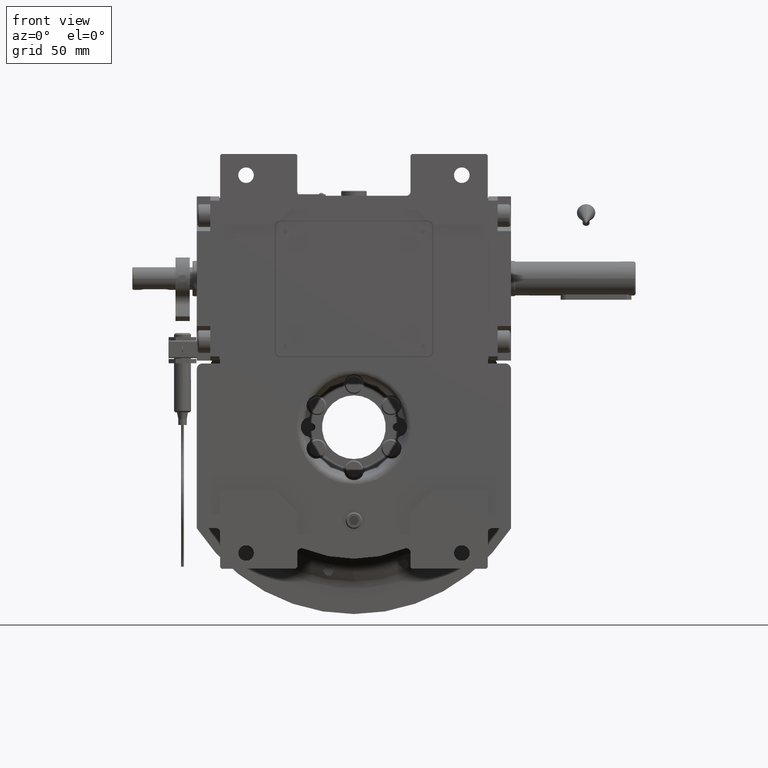
[diagram: clean part render]
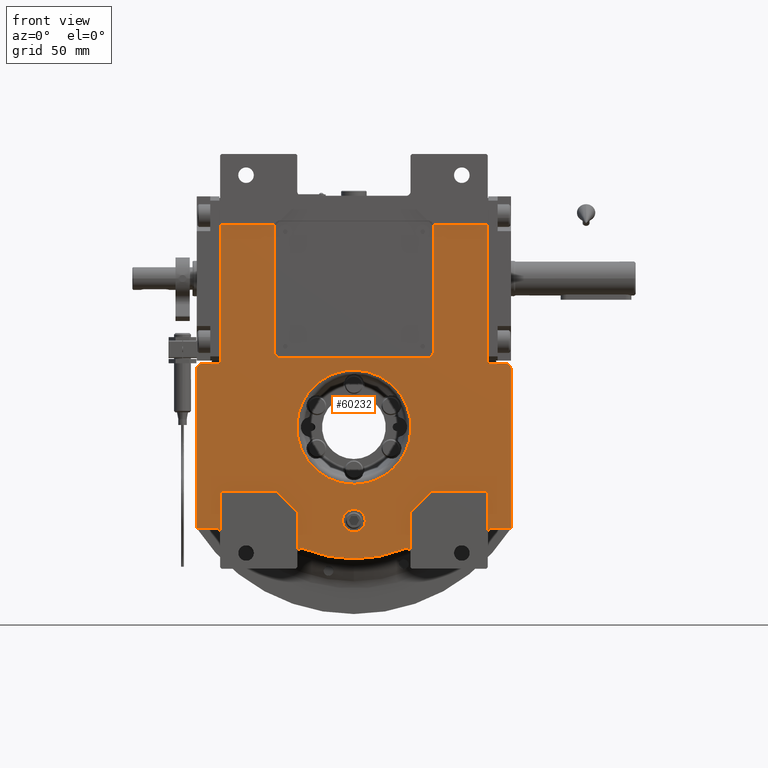
[diagram: same view with one face highlighted and labeled with its STEP entity id]
A machine part, front view. The second image highlights one B-rep face of the part: STEP entity #60232.
In plain terms, the highlighted planar face has unit normal (0, 1, 0).
Its self-contained STEP definition (entity closure, byte-faithful):
#45 = CIRCLE ( 'NONE', #58247, 3.000000000000003997 ) ;
#91 = CARTESIAN_POINT ( 'NONE',  ( 55.00000000000000000, -53.50000000000000000, -45.00000000000000000 ) ) ;
#445 = LINE ( 'NONE', #64282, #1620 ) ;
#529 = EDGE_CURVE ( 'NONE', #55608, #20338, #42030, .T. ) ;
#887 = CIRCLE ( 'NONE', #49399, 8.000000000000000000 ) ;
#1557 = EDGE_CURVE ( 'NONE', #16460, #49065, #445, .T. ) ;
#1620 = VECTOR ( 'NONE', #29345, 1000.000000000000000 ) ;
#2030 = LINE ( 'NONE', #59780, #36386 ) ;
#2519 = CARTESIAN_POINT ( 'NONE',  ( 94.50000000000000000, -53.50000000000000000, -74.43528539874399996 ) ) ;
#2643 = DIRECTION ( 'NONE',  ( -0.3854166666666672403, 0.000000000000000000, -0.9227426472508764022 ) ) ;
#3021 = VECTOR ( 'NONE', #7542, 1000.000000000000000 ) ;
#3111 = CARTESIAN_POINT ( 'NONE',  ( -107.0000000000000000, -53.50000000000000000, 45.00000000000000000 ) ) ;
#3233 = CIRCLE ( 'NONE', #27487, 4.000000000000572875 ) ;
#3744 = ORIENTED_EDGE ( 'NONE', *, *, #33997, .T. ) ;
#3776 = EDGE_CURVE ( 'NONE', #44270, #14143, #72508, .T. ) ;
#3843 = EDGE_CURVE ( 'NONE', #49065, #55065, #62484, .T. ) ;
#4768 = EDGE_CURVE ( 'NONE', #20485, #14464, #20256, .T. ) ;
#4853 = CARTESIAN_POINT ( 'NONE',  ( 1.264666971694413862E-10, -53.50000000000000000, -40.30959420574829721 ) ) ;
#5140 = DIRECTION ( 'NONE',  ( -1.000000000000000000, 0.000000000000000000, 0.000000000000000000 ) ) ;
#5152 = CARTESIAN_POINT ( 'NONE',  ( -80.61913312124997333, -53.49999999999999289, 40.30955543265923069 ) ) ;
#5232 = CARTESIAN_POINT ( 'NONE',  ( 37.00000000000000000, -53.50000000000000000, -88.58329413608420566 ) ) ;
#5275 = ORIENTED_EDGE ( 'NONE', *, *, #16240, .F. ) ;
#5757 = CARTESIAN_POINT ( 'NONE',  ( 107.0000000000000000, -53.50000000000000000, 41.00000000000000000 ) ) ;
#5888 = EDGE_CURVE ( 'NONE', #68815, #63899, #887, .T. ) ;
#6510 = ORIENTED_EDGE ( 'NONE', *, *, #13887, .F. ) ;
#6945 = VERTEX_POINT ( 'NONE', #2519 ) ;
#7542 = DIRECTION ( 'NONE',  ( 1.000000000000000000, 0.000000000000000000, 0.000000000000000000 ) ) ;
#7824 = CARTESIAN_POINT ( 'NONE',  ( 55.00000000000000000, -53.50000000000000000, -45.00000000000000000 ) ) ;
#7873 = CARTESIAN_POINT ( 'NONE',  ( 55.87298334620739837, -53.50000000000000000, 143.0000000000000000 ) ) ;
#7923 = AXIS2_PLACEMENT_3D ( 'NONE', #53899, #43250, #20439 ) ;
#8092 = VERTEX_POINT ( 'NONE', #35671 ) ;
#8146 = LINE ( 'NONE', #25618, #62199 ) ;
#8434 = DIRECTION ( 'NONE',  ( 0.000000000000000000, 0.000000000000000000, -1.000000000000000000 ) ) ;
#8812 = ORIENTED_EDGE ( 'NONE', *, *, #1557, .F. ) ;
#9026 = EDGE_CURVE ( 'NONE', #6945, #57812, #20159, .T. ) ;
#9051 = DIRECTION ( 'NONE',  ( 0.000000000000000000, -1.000000000000000000, 0.000000000000000000 ) ) ;
#9400 = VECTOR ( 'NONE', #9602, 1000.000000000000000 ) ;
#9407 = EDGE_CURVE ( 'NONE', #63899, #68815, #49783, .T. ) ;
#9412 = CARTESIAN_POINT ( 'NONE',  ( 97.50000000000000000, -53.50000000000000000, -74.43528539874399996 ) ) ;
#9466 = VECTOR ( 'NONE', #72457, 1000.000000000000000 ) ;
#9468 = EDGE_CURVE ( 'NONE', #36769, #32973, #47769, .T. ) ;
#9602 = DIRECTION ( 'NONE',  ( -1.000000000000000000, 0.000000000000000000, 0.000000000000000000 ) ) ;
#9871 = DIRECTION ( 'NONE',  ( 1.000000000000000000, 0.000000000000000000, 1.387778780781246883E-14 ) ) ;
#9962 = VECTOR ( 'NONE', #43792, 1000.000000000000000 ) ;
#9993 = CARTESIAN_POINT ( 'NONE',  ( 35.84375000000000000, -53.50000000000000000, -85.81506619433150718 ) ) ;
#10540 = CIRCLE ( 'NONE', #36010, 92.99999999999995737 ) ;
#11101 = EDGE_CURVE ( 'NONE', #32973, #36769, #68657, .T. ) ;
#12044 = ORIENTED_EDGE ( 'NONE', *, *, #73286, .F. ) ;
#12772 = VERTEX_POINT ( 'NONE', #71746 ) ;
#13608 = LINE ( 'NONE', #34644, #68005 ) ;
#13709 = EDGE_CURVE ( 'NONE', #12772, #24171, #56320, .T. ) ;
#13887 = EDGE_CURVE ( 'NONE', #74957, #38198, #13608, .T. ) ;
#14143 = VERTEX_POINT ( 'NONE', #68298 ) ;
#14464 = VERTEX_POINT ( 'NONE', #36705 ) ;
#14693 = EDGE_CURVE ( 'NONE', #55608, #23686, #67063, .T. ) ;
#14747 = DIRECTION ( 'NONE',  ( 1.000000000000000000, 0.000000000000000000, 0.000000000000000000 ) ) ;
#14804 = CARTESIAN_POINT ( 'NONE',  ( 51.99999999999940314, -53.50000000000000000, 142.0000000000000000 ) ) ;
#14930 = EDGE_LOOP ( 'NONE', ( #18890, #75044 ) ) ;
#15048 = DIRECTION ( 'NONE',  ( 0.000000000000000000, 0.000000000000000000, -1.000000000000000000 ) ) ;
#15133 = DIRECTION ( 'NONE',  ( 1.000000000000000000, 0.000000000000000000, 0.000000000000000000 ) ) ;
#15244 = VERTEX_POINT ( 'NONE', #91 ) ;
#15281 = EDGE_CURVE ( 'NONE', #57812, #15244, #35049, .T. ) ;
#15612 = FACE_BOUND ( 'NONE', #14930, .T. ) ;
#15687 = CIRCLE ( 'NONE', #58178, 4.000000000000003553 ) ;
#15776 = DIRECTION ( 'NONE',  ( 1.000000000000000000, 0.000000000000000000, 0.000000000000000000 ) ) ;
#15876 = CARTESIAN_POINT ( 'NONE',  ( 80.61913312099713380, -53.49999999999999289, 40.30952624498025472 ) ) ;
#16240 = EDGE_CURVE ( 'NONE', #75016, #18408, #2030, .T. ) ;
#16460 = VERTEX_POINT ( 'NONE', #20616 ) ;
#16765 = DIRECTION ( 'NONE',  ( 1.000000000000000000, 0.000000000000000000, 5.204170427930416550E-15 ) ) ;
#18184 = VERTEX_POINT ( 'NONE', #41037 ) ;
#18262 = CARTESIAN_POINT ( 'NONE',  ( -40.00000000000000000, -53.50000000000000000, -60.00000000000000000 ) ) ;
#18408 = VERTEX_POINT ( 'NONE', #68716 ) ;
#18890 = ORIENTED_EDGE ( 'NONE', *, *, #11101, .T. ) ;
#20124 = CARTESIAN_POINT ( 'NONE',  ( 94.50000000000000000, -53.50000000000000000, 45.00000000000000000 ) ) ;
#20159 = LINE ( 'NONE', #49414, #71660 ) ;
#20256 = LINE ( 'NONE', #45595, #62646 ) ;
#20338 = VERTEX_POINT ( 'NONE', #18262 ) ;
#20439 = DIRECTION ( 'NONE',  ( -1.000000000000000000, 0.000000000000000000, 1.734723475976808672E-15 ) ) ;
#20485 = VERTEX_POINT ( 'NONE', #20124 ) ;
#20614 = CARTESIAN_POINT ( 'NONE',  ( 94.50000000000000000, -53.50000000000000000, -45.00000000000000000 ) ) ;
#20615 = CARTESIAN_POINT ( 'NONE',  ( 97.50000000000000000, -53.50000000000000000, -71.43528539874399996 ) ) ;
#20616 = CARTESIAN_POINT ( 'NONE',  ( -56.00000000000000000, -53.50000000000000000, 142.0000000000000000 ) ) ;
#20821 = CARTESIAN_POINT ( 'NONE',  ( -51.99999999999900524, -53.50000000000000000, 142.0000000000000000 ) ) ;
#21034 = VERTEX_POINT ( 'NONE', #57541 ) ;
#21747 = CARTESIAN_POINT ( 'NONE',  ( -55.00000000000000000, -53.50000000000000000, -45.00000000000000000 ) ) ;
#22479 = ORIENTED_EDGE ( 'NONE', *, *, #68395, .F. ) ;
#22570 = ORIENTED_EDGE ( 'NONE', *, *, #9407, .F. ) ;
#22643 = CARTESIAN_POINT ( 'NONE',  ( 111.0000000000000000, -53.50000000000000000, -71.43528539874399996 ) ) ;
#23343 = DIRECTION ( 'NONE',  ( 0.000000000000000000, 1.000000000000000000, 0.000000000000000000 ) ) ;
#23383 = ORIENTED_EDGE ( 'NONE', *, *, #28347, .F. ) ;
#23686 = VERTEX_POINT ( 'NONE', #65303 ) ;
#23945 = VERTEX_POINT ( 'NONE', #44999 ) ;
#24171 = VERTEX_POINT ( 'NONE', #29552 ) ;
#24194 = CARTESIAN_POINT ( 'NONE',  ( 1.264666971694413862E-10, -53.50000000000000000, -40.30959420574829721 ) ) ;
#24758 = CIRCLE ( 'NONE', #61141, 3.000000000000002665 ) ;
#25618 = CARTESIAN_POINT ( 'NONE',  ( -94.50000000000000000, -53.50000000000000000, 45.00000000000000000 ) ) ;
#25737 = DIRECTION ( 'NONE',  ( -1.000000000000000000, 0.000000000000000000, 0.000000000000000000 ) ) ;
#26424 = VECTOR ( 'NONE', #15048, 1000.000000000000000 ) ;
#26605 = ORIENTED_EDGE ( 'NONE', *, *, #29980, .F. ) ;
#26623 = FACE_BOUND ( 'NONE', #61339, .T. ) ;
#26715 = AXIS2_PLACEMENT_3D ( 'NONE', #43630, #9051, #14747 ) ;
#26789 = LINE ( 'NONE', #73151, #66410 ) ;
#27174 = CARTESIAN_POINT ( 'NONE',  ( -80.61913312099703433, -53.49999999999999289, -40.30952624498007708 ) ) ;
#27380 = DIRECTION ( 'NONE',  ( 0.000000000000000000, -1.000000000000000000, 0.000000000000000000 ) ) ;
#27487 = AXIS2_PLACEMENT_3D ( 'NONE', #14804, #50123, #9871 ) ;
#28031 = CARTESIAN_POINT ( 'NONE',  ( 80.61913312125007280, -53.49999999999999289, -40.30955543265933727 ) ) ;
#28045 = AXIS2_PLACEMENT_3D ( 'NONE', #67668, #27380, #56261 ) ;
#28347 = EDGE_CURVE ( 'NONE', #38198, #75016, #3233, .T. ) ;
#28388 = EDGE_CURVE ( 'NONE', #23686, #67118, #10540, .T. ) ;
#28957 = AXIS2_PLACEMENT_3D ( 'NONE', #20821, #38310, #55414 ) ;
#29345 = DIRECTION ( 'NONE',  ( 0.000000000000000000, 0.000000000000000000, -1.000000000000000000 ) ) ;
#29552 = CARTESIAN_POINT ( 'NONE',  ( -94.50000000000000000, -53.50000000000000000, -45.00000000000000000 ) ) ;
#29809 = DIRECTION ( 'NONE',  ( -1.000000000000000000, 0.000000000000000000, 4.625929269271481378E-15 ) ) ;
#29898 = DIRECTION ( 'NONE',  ( -0.7071067811865474617, 0.000000000000000000, -0.7071067811865474617 ) ) ;
#29980 = EDGE_CURVE ( 'NONE', #15244, #18184, #41294, .T. ) ;
#30514 = CARTESIAN_POINT ( 'NONE',  ( -94.50000000000000000, -53.50000000000000000, 143.0000000000000000 ) ) ;
#30862 = CARTESIAN_POINT ( 'NONE',  ( -8.000000000000000000, -53.50000000000000000, -66.00000000000000000 ) ) ;
#31337 = DIRECTION ( 'NONE',  ( 0.000000000000000000, 0.000000000000000000, 1.000000000000000000 ) ) ;
#31424 = LINE ( 'NONE', #54603, #9466 ) ;
#31442 = EDGE_CURVE ( 'NONE', #14143, #65014, #44840, .T. ) ;
#31633 = CARTESIAN_POINT ( 'NONE',  ( -97.50000000000000000, -53.50000000000000000, -74.43528539874409944 ) ) ;
#32024 = LINE ( 'NONE', #20615, #9962 ) ;
#32302 = EDGE_LOOP ( 'NONE', ( #72398, #38599, #8812, #59454, #49355, #22479, #12044, #71018, #71701, #32311, #68385, #34307, #34840, #59151, #61951, #46664, #64807, #3744, #66098, #26605, #74264, #43517, #47099, #40910, #44699, #44653, #39726, #50319, #5275, #23383, #6510, #38945 ) ) ;
#32311 = ORIENTED_EDGE ( 'NONE', *, *, #3776, .T. ) ;
#32537 = CARTESIAN_POINT ( 'NONE',  ( -1.264761546777279996E-10, -53.50000000000000000, 40.30959420574835406 ) ) ;
#32816 = VERTEX_POINT ( 'NONE', #45501 ) ;
#32973 = VERTEX_POINT ( 'NONE', #24194 ) ;
#33032 = DIRECTION ( 'NONE',  ( 0.000000000000000000, -1.000000000000000000, 0.000000000000000000 ) ) ;
#33997 = EDGE_CURVE ( 'NONE', #67118, #21034, #45, .T. ) ;
#34114 = CIRCLE ( 'NONE', #28045, 3.999999999999996447 ) ;
#34307 = ORIENTED_EDGE ( 'NONE', *, *, #48985, .F. ) ;
#34436 = CARTESIAN_POINT ( 'NONE',  ( -94.50000000000000000, -53.50000000000000000, -74.43528539874409944 ) ) ;
#34644 = CARTESIAN_POINT ( 'NONE',  ( 56.00000000000000000, -53.50000000000000000, 53.00000000000000000 ) ) ;
#34840 = ORIENTED_EDGE ( 'NONE', *, *, #13709, .F. ) ;
#34943 = CARTESIAN_POINT ( 'NONE',  ( -1.264761546777279996E-10, -53.50000000000000000, 40.30959420574835406 ) ) ;
#35049 = LINE ( 'NONE', #69627, #67122 ) ;
#35559 = DIRECTION ( 'NONE',  ( 0.000000000000000000, 0.000000000000000000, 1.000000000000000000 ) ) ;
#35671 = CARTESIAN_POINT ( 'NONE',  ( -111.0000000000000000, -53.50000000000000000, 41.00000000000000000 ) ) ;
#36010 = AXIS2_PLACEMENT_3D ( 'NONE', #49002, #33032, #2643 ) ;
#36079 = EDGE_CURVE ( 'NONE', #32816, #62188, #32024, .T. ) ;
#36386 = VECTOR ( 'NONE', #65108, 1000.000000000000000 ) ;
#36705 = CARTESIAN_POINT ( 'NONE',  ( 107.0000000000000000, -53.50000000000000000, 45.00000000000000000 ) ) ;
#36769 = VERTEX_POINT ( 'NONE', #34943 ) ;
#36786 = DIRECTION ( 'NONE',  ( 0.000000000000000000, 0.000000000000000000, 1.000000000000000000 ) ) ;
#37189 = CARTESIAN_POINT ( 'NONE',  ( 56.00000000000000000, -53.50000000000000000, 142.0000000000000000 ) ) ;
#37915 = EDGE_CURVE ( 'NONE', #68769, #74957, #57081, .T. ) ;
#38198 = VERTEX_POINT ( 'NONE', #37189 ) ;
#38310 = DIRECTION ( 'NONE',  ( 0.000000000000000000, -1.000000000000000000, 0.000000000000000000 ) ) ;
#38435 = LINE ( 'NONE', #43381, #51787 ) ;
#38599 = ORIENTED_EDGE ( 'NONE', *, *, #3843, .F. ) ;
#38945 = ORIENTED_EDGE ( 'NONE', *, *, #37915, .F. ) ;
#39070 = EDGE_CURVE ( 'NONE', #51593, #8092, #34114, .T. ) ;
#39163 = VECTOR ( 'NONE', #74709, 1000.000000000000114 ) ;
#39709 = CARTESIAN_POINT ( 'NONE',  ( -111.0000000000000000, -53.50000000000000000, -71.43528539874409944 ) ) ;
#39726 = ORIENTED_EDGE ( 'NONE', *, *, #4768, .F. ) ;
#40040 = CARTESIAN_POINT ( 'NONE',  ( 52.00000000000000000, -53.50000000000000000, 49.00000000000000000 ) ) ;
#40910 = ORIENTED_EDGE ( 'NONE', *, *, #36079, .T. ) ;
#41037 = CARTESIAN_POINT ( 'NONE',  ( 40.00000000000000000, -53.50000000000000000, -60.00000000000000000 ) ) ;
#41294 = LINE ( 'NONE', #7824, #53143 ) ;
#41454 = EDGE_CURVE ( 'NONE', #62679, #23945, #65813, .T. ) ;
#41505 = CARTESIAN_POINT ( 'NONE',  ( 111.0000000000000000, -53.50000000000000000, -71.43528539874399996 ) ) ;
#41564 = CARTESIAN_POINT ( 'NONE',  ( -37.00000000000000000, -53.50000000000000000, -88.58329413608420566 ) ) ;
#41711 = VECTOR ( 'NONE', #64824, 1000.000000000000000 ) ;
#41908 = DIRECTION ( 'NONE',  ( 1.000000000000000000, 0.000000000000000000, 0.000000000000000000 ) ) ;
#42030 = LINE ( 'NONE', #58394, #41711 ) ;
#42773 = AXIS2_PLACEMENT_3D ( 'NONE', #41564, #23343, #29809 ) ;
#43250 = DIRECTION ( 'NONE',  ( 0.000000000000000000, -1.000000000000000000, 0.000000000000000000 ) ) ;
#43381 = CARTESIAN_POINT ( 'NONE',  ( -94.50000000000000000, -53.50000000000000000, -45.00000000000000000 ) ) ;
#43444 = DIRECTION ( 'NONE',  ( 1.000000000000000000, 0.000000000000000000, 0.000000000000000000 ) ) ;
#43517 = ORIENTED_EDGE ( 'NONE', *, *, #9026, .F. ) ;
#43599 = DIRECTION ( 'NONE',  ( 0.000000000000000000, 1.000000000000000000, 0.000000000000000000 ) ) ;
#43630 = CARTESIAN_POINT ( 'NONE',  ( 8.881784197001250351E-16, -53.50000000000000000, -66.00000000000000000 ) ) ;
#43792 = DIRECTION ( 'NONE',  ( 1.000000000000000000, 0.000000000000000000, 0.000000000000000000 ) ) ;
#43930 = LINE ( 'NONE', #67113, #26424 ) ;
#44103 = DIRECTION ( 'NONE',  ( -0.000000000000000000, 1.000000000000000000, 0.000000000000000000 ) ) ;
#44270 = VERTEX_POINT ( 'NONE', #39709 ) ;
#44653 = ORIENTED_EDGE ( 'NONE', *, *, #62702, .T. ) ;
#44699 = ORIENTED_EDGE ( 'NONE', *, *, #67430, .T. ) ;
#44840 = CIRCLE ( 'NONE', #73976, 3.000000000000002665 ) ;
#44999 = CARTESIAN_POINT ( 'NONE',  ( -55.87298334620739837, -53.50000000000000000, 143.0000000000000000 ) ) ;
#45085 = CARTESIAN_POINT ( 'NONE',  ( 8.000000000000000000, -53.50000000000000000, -66.00000000000000000 ) ) ;
#45141 = CARTESIAN_POINT ( 'NONE',  ( -107.0000000000000000, -53.50000000000000000, 45.00000000000000000 ) ) ;
#45385 = DIRECTION ( 'NONE',  ( 0.000000000000000000, 0.000000000000000000, -1.000000000000000000 ) ) ;
#45501 = CARTESIAN_POINT ( 'NONE',  ( 97.50000000000000000, -53.50000000000000000, -71.43528539874399996 ) ) ;
#45595 = CARTESIAN_POINT ( 'NONE',  ( 94.50000000000000000, -53.50000000000000000, 45.00000000000000000 ) ) ;
#46117 = AXIS2_PLACEMENT_3D ( 'NONE', #53919, #53545, #52419 ) ;
#46148 = LINE ( 'NONE', #63246, #57699 ) ;
#46218 = VERTEX_POINT ( 'NONE', #52150 ) ;
#46664 = ORIENTED_EDGE ( 'NONE', *, *, #14693, .T. ) ;
#47099 = ORIENTED_EDGE ( 'NONE', *, *, #54267, .T. ) ;
#47150 = CARTESIAN_POINT ( 'NONE',  ( -94.50000000000000000, -53.50000000000000000, 143.0000000000000000 ) ) ;
#47769 =( BOUNDED_CURVE ( )  B_SPLINE_CURVE ( 3, ( #55788, #15876, #28031, #4853 ),
 .UNSPECIFIED., .F., .F. ) 
 B_SPLINE_CURVE_WITH_KNOTS ( ( 4, 4 ),
 ( 4.574175343352308687, 7.715766673011676957 ),
 .UNSPECIFIED. ) 
 CURVE ( )  GEOMETRIC_REPRESENTATION_ITEM ( )  RATIONAL_B_SPLINE_CURVE ( ( 1.000000000000000000, 0.3333337746434750226, 0.3333337746434750226, 1.000000000000000000 ) ) 
 REPRESENTATION_ITEM ( '' )  );
#48934 = CARTESIAN_POINT ( 'NONE',  ( -111.0000000000000000, -53.50000000000000000, -71.43528539874409944 ) ) ;
#48985 = EDGE_CURVE ( 'NONE', #24171, #65014, #38435, .T. ) ;
#49002 = CARTESIAN_POINT ( 'NONE',  ( 1.421085471520200056E-14, -53.50000000000000000, -4.263256414560599853E-14 ) ) ;
#49065 = VERTEX_POINT ( 'NONE', #51709 ) ;
#49355 = ORIENTED_EDGE ( 'NONE', *, *, #41454, .F. ) ;
#49399 = AXIS2_PLACEMENT_3D ( 'NONE', #69364, #58332, #5140 ) ;
#49414 = CARTESIAN_POINT ( 'NONE',  ( 94.50000000000000000, -53.50000000000000000, -74.43528539874399996 ) ) ;
#49783 = CIRCLE ( 'NONE', #26715, 8.000000000000000000 ) ;
#49816 = PLANE ( 'NONE',  #56935 ) ;
#50123 = DIRECTION ( 'NONE',  ( 0.000000000000000000, -1.000000000000000000, 0.000000000000000000 ) ) ;
#50180 = DIRECTION ( 'NONE',  ( 1.000000000000000000, 0.000000000000000000, 0.000000000000000000 ) ) ;
#50319 = ORIENTED_EDGE ( 'NONE', *, *, #61092, .F. ) ;
#50853 = LINE ( 'NONE', #45141, #61486 ) ;
#51259 = EDGE_CURVE ( 'NONE', #20338, #12772, #73208, .T. ) ;
#51590 = DIRECTION ( 'NONE',  ( 0.000000000000000000, 1.000000000000000000, 0.000000000000000000 ) ) ;
#51593 = VERTEX_POINT ( 'NONE', #3111 ) ;
#51709 = CARTESIAN_POINT ( 'NONE',  ( -56.00000000000000000, -53.50000000000000000, 53.00000000000000000 ) ) ;
#51787 = VECTOR ( 'NONE', #8434, 1000.000000000000000 ) ;
#52150 = CARTESIAN_POINT ( 'NONE',  ( -94.50000000000000000, -53.50000000000000000, 45.00000000000000000 ) ) ;
#52306 = CARTESIAN_POINT ( 'NONE',  ( 111.0000000000000000, -53.50000000000000000, 41.00000000000000000 ) ) ;
#52419 = DIRECTION ( 'NONE',  ( 0.000000000000000000, 0.000000000000000000, -1.000000000000000000 ) ) ;
#53143 = VECTOR ( 'NONE', #29898, 1000.000000000000114 ) ;
#53545 = DIRECTION ( 'NONE',  ( 0.000000000000000000, -1.000000000000000000, 0.000000000000000000 ) ) ;
#53899 = CARTESIAN_POINT ( 'NONE',  ( -52.00000000000000000, -53.50000000000000000, 53.00000000000000000 ) ) ;
#53919 = CARTESIAN_POINT ( 'NONE',  ( 52.00000000000000000, -53.50000000000000000, 53.00000000000000000 ) ) ;
#54267 = EDGE_CURVE ( 'NONE', #6945, #32816, #24758, .T. ) ;
#54603 = CARTESIAN_POINT ( 'NONE',  ( 40.00000000000000000, -53.50000000000000000, -60.00000000000000000 ) ) ;
#54811 = DIRECTION ( 'NONE',  ( 0.000000000000000000, 1.000000000000000000, 0.000000000000000000 ) ) ;
#55065 = VERTEX_POINT ( 'NONE', #74080 ) ;
#55143 = CARTESIAN_POINT ( 'NONE',  ( 0.000000000000000000, -53.50000000000000000, 0.000000000000000000 ) ) ;
#55414 = DIRECTION ( 'NONE',  ( -0.9682458365518610277, 0.000000000000000000, 0.2499999999999737432 ) ) ;
#55608 = VERTEX_POINT ( 'NONE', #69803 ) ;
#55788 = CARTESIAN_POINT ( 'NONE',  ( -1.264761546777279996E-10, -53.50000000000000000, 40.30959420574835406 ) ) ;
#55960 = EDGE_CURVE ( 'NONE', #8092, #44270, #46148, .T. ) ;
#56261 = DIRECTION ( 'NONE',  ( -3.469446951953617344E-15, 0.000000000000000000, 1.000000000000000000 ) ) ;
#56320 = LINE ( 'NONE', #21747, #9400 ) ;
#56935 = AXIS2_PLACEMENT_3D ( 'NONE', #55143, #44103, #50180 ) ;
#56993 = VERTEX_POINT ( 'NONE', #52306 ) ;
#57081 = CIRCLE ( 'NONE', #46117, 3.999999999999996447 ) ;
#57211 = CARTESIAN_POINT ( 'NONE',  ( 1.264666971694413862E-10, -53.50000000000000000, -40.30959420574829721 ) ) ;
#57541 = CARTESIAN_POINT ( 'NONE',  ( 40.00000000000000000, -53.50000000000000000, -88.58329413608420566 ) ) ;
#57684 = ORIENTED_EDGE ( 'NONE', *, *, #5888, .F. ) ;
#57699 = VECTOR ( 'NONE', #45385, 1000.000000000000000 ) ;
#57812 = VERTEX_POINT ( 'NONE', #20614 ) ;
#58178 = AXIS2_PLACEMENT_3D ( 'NONE', #5757, #70344, #16765 ) ;
#58247 = AXIS2_PLACEMENT_3D ( 'NONE', #5232, #51590, #74767 ) ;
#58332 = DIRECTION ( 'NONE',  ( 0.000000000000000000, -1.000000000000000000, 0.000000000000000000 ) ) ;
#58394 = CARTESIAN_POINT ( 'NONE',  ( -40.00000000000000000, -53.50000000000000000, -88.58329413608420566 ) ) ;
#58473 = VECTOR ( 'NONE', #41908, 1000.000000000000000 ) ;
#58509 = EDGE_CURVE ( 'NONE', #55065, #68769, #26789, .T. ) ;
#59151 = ORIENTED_EDGE ( 'NONE', *, *, #51259, .F. ) ;
#59454 = ORIENTED_EDGE ( 'NONE', *, *, #59823, .F. ) ;
#59780 = CARTESIAN_POINT ( 'NONE',  ( 55.87298334620739837, -53.50000000000000000, 143.0000000000000000 ) ) ;
#59823 = EDGE_CURVE ( 'NONE', #23945, #16460, #75092, .T. ) ;
#60232 = ADVANCED_FACE ( 'NONE', ( #15612, #26623, #72998 ), #49816, .F. ) ;
#60301 = CARTESIAN_POINT ( 'NONE',  ( 56.00000000000000000, -53.50000000000000000, 53.00000000000000000 ) ) ;
#61079 = EDGE_CURVE ( 'NONE', #18184, #21034, #31424, .T. ) ;
#61092 = EDGE_CURVE ( 'NONE', #18408, #20485, #43930, .T. ) ;
#61141 = AXIS2_PLACEMENT_3D ( 'NONE', #9412, #43599, #25737 ) ;
#61189 = DIRECTION ( 'NONE',  ( 0.000000000000000000, 0.000000000000000000, 1.000000000000000000 ) ) ;
#61339 = EDGE_LOOP ( 'NONE', ( #22570, #57684 ) ) ;
#61486 = VECTOR ( 'NONE', #15133, 1000.000000000000000 ) ;
#61951 = ORIENTED_EDGE ( 'NONE', *, *, #529, .F. ) ;
#62180 = CARTESIAN_POINT ( 'NONE',  ( -40.00000000000000000, -53.50000000000000000, -60.00000000000000000 ) ) ;
#62188 = VERTEX_POINT ( 'NONE', #22643 ) ;
#62199 = VECTOR ( 'NONE', #31337, 1000.000000000000000 ) ;
#62484 = CIRCLE ( 'NONE', #7923, 3.999999999999996447 ) ;
#62646 = VECTOR ( 'NONE', #43444, 1000.000000000000000 ) ;
#62679 = VERTEX_POINT ( 'NONE', #47150 ) ;
#62702 = EDGE_CURVE ( 'NONE', #56993, #14464, #15687, .T. ) ;
#63246 = CARTESIAN_POINT ( 'NONE',  ( -111.0000000000000000, -53.50000000000000000, 41.00000000000000000 ) ) ;
#63899 = VERTEX_POINT ( 'NONE', #45085 ) ;
#64282 = CARTESIAN_POINT ( 'NONE',  ( -56.00000000000000000, -53.50000000000000000, 142.0000000000000000 ) ) ;
#64659 = DIRECTION ( 'NONE',  ( -1.000000000000000000, 0.000000000000000000, 0.000000000000000000 ) ) ;
#64807 = ORIENTED_EDGE ( 'NONE', *, *, #28388, .T. ) ;
#64824 = DIRECTION ( 'NONE',  ( 0.000000000000000000, 0.000000000000000000, 1.000000000000000000 ) ) ;
#65014 = VERTEX_POINT ( 'NONE', #34436 ) ;
#65108 = DIRECTION ( 'NONE',  ( 1.000000000000000000, 0.000000000000000000, 0.000000000000000000 ) ) ;
#65303 = CARTESIAN_POINT ( 'NONE',  ( -35.84375000000000000, -53.50000000000000000, -85.81506619433150718 ) ) ;
#65813 = LINE ( 'NONE', #30514, #58473 ) ;
#66098 = ORIENTED_EDGE ( 'NONE', *, *, #61079, .F. ) ;
#66410 = VECTOR ( 'NONE', #15776, 1000.000000000000000 ) ;
#67063 = CIRCLE ( 'NONE', #42773, 3.000000000000002665 ) ;
#67113 = CARTESIAN_POINT ( 'NONE',  ( 94.50000000000000000, -53.50000000000000000, 143.0000000000000000 ) ) ;
#67118 = VERTEX_POINT ( 'NONE', #9993 ) ;
#67122 = VECTOR ( 'NONE', #64659, 1000.000000000000000 ) ;
#67430 = EDGE_CURVE ( 'NONE', #62188, #56993, #71150, .T. ) ;
#67668 = CARTESIAN_POINT ( 'NONE',  ( -107.0000000000000000, -53.50000000000000000, 41.00000000000000000 ) ) ;
#68005 = VECTOR ( 'NONE', #36786, 1000.000000000000000 ) ;
#68298 = CARTESIAN_POINT ( 'NONE',  ( -97.50000000000000000, -53.50000000000000000, -71.43528539874409944 ) ) ;
#68385 = ORIENTED_EDGE ( 'NONE', *, *, #31442, .T. ) ;
#68395 = EDGE_CURVE ( 'NONE', #46218, #62679, #8146, .T. ) ;
#68657 =( BOUNDED_CURVE ( )  B_SPLINE_CURVE ( 3, ( #57211, #27174, #5152, #32537 ),
 .UNSPECIFIED., .F., .F. ) 
 B_SPLINE_CURVE_WITH_KNOTS ( ( 4, 4 ),
 ( 1.432582689913126872, 4.574174019572492256 ),
 .UNSPECIFIED. ) 
 CURVE ( )  GEOMETRIC_REPRESENTATION_ITEM ( )  RATIONAL_B_SPLINE_CURVE ( ( 1.000000000000000000, 0.3333337746434759108, 0.3333337746434759108, 1.000000000000000000 ) ) 
 REPRESENTATION_ITEM ( '' )  );
#68716 = CARTESIAN_POINT ( 'NONE',  ( 94.50000000000000000, -53.50000000000000000, 143.0000000000000000 ) ) ;
#68769 = VERTEX_POINT ( 'NONE', #40040 ) ;
#68815 = VERTEX_POINT ( 'NONE', #30862 ) ;
#69364 = CARTESIAN_POINT ( 'NONE',  ( -8.881784197001250351E-16, -53.50000000000000000, -66.00000000000000000 ) ) ;
#69489 = VECTOR ( 'NONE', #71524, 1000.000000000000000 ) ;
#69627 = CARTESIAN_POINT ( 'NONE',  ( 94.50000000000000000, -53.50000000000000000, -45.00000000000000000 ) ) ;
#69803 = CARTESIAN_POINT ( 'NONE',  ( -40.00000000000000000, -53.50000000000000000, -88.58329413608420566 ) ) ;
#70344 = DIRECTION ( 'NONE',  ( 0.000000000000000000, -1.000000000000000000, 0.000000000000000000 ) ) ;
#71018 = ORIENTED_EDGE ( 'NONE', *, *, #39070, .T. ) ;
#71150 = LINE ( 'NONE', #41505, #69489 ) ;
#71524 = DIRECTION ( 'NONE',  ( 6.319570704518680589E-16, 0.000000000000000000, 1.000000000000000000 ) ) ;
#71660 = VECTOR ( 'NONE', #61189, 1000.000000000000000 ) ;
#71701 = ORIENTED_EDGE ( 'NONE', *, *, #55960, .T. ) ;
#71746 = CARTESIAN_POINT ( 'NONE',  ( -55.00000000000000000, -53.50000000000000000, -45.00000000000000000 ) ) ;
#72398 = ORIENTED_EDGE ( 'NONE', *, *, #58509, .F. ) ;
#72457 = DIRECTION ( 'NONE',  ( 0.000000000000000000, 0.000000000000000000, -1.000000000000000000 ) ) ;
#72508 = LINE ( 'NONE', #48934, #3021 ) ;
#72998 = FACE_OUTER_BOUND ( 'NONE', #32302, .T. ) ;
#73151 = CARTESIAN_POINT ( 'NONE',  ( -52.00000000000000000, -53.50000000000000000, 49.00000000000000000 ) ) ;
#73208 = LINE ( 'NONE', #62180, #39163 ) ;
#73286 = EDGE_CURVE ( 'NONE', #51593, #46218, #50853, .T. ) ;
#73976 = AXIS2_PLACEMENT_3D ( 'NONE', #31633, #54811, #35559 ) ;
#74080 = CARTESIAN_POINT ( 'NONE',  ( -52.00000000000000000, -53.50000000000000000, 49.00000000000000000 ) ) ;
#74264 = ORIENTED_EDGE ( 'NONE', *, *, #15281, .F. ) ;
#74709 = DIRECTION ( 'NONE',  ( -0.7071067811865474617, 0.000000000000000000, 0.7071067811865474617 ) ) ;
#74767 = DIRECTION ( 'NONE',  ( -0.3854166666666676289, 0.000000000000000000, 0.9227426472508761801 ) ) ;
#74957 = VERTEX_POINT ( 'NONE', #60301 ) ;
#75016 = VERTEX_POINT ( 'NONE', #7873 ) ;
#75044 = ORIENTED_EDGE ( 'NONE', *, *, #9468, .T. ) ;
#75092 = CIRCLE ( 'NONE', #28957, 4.000000000000978773 ) ;